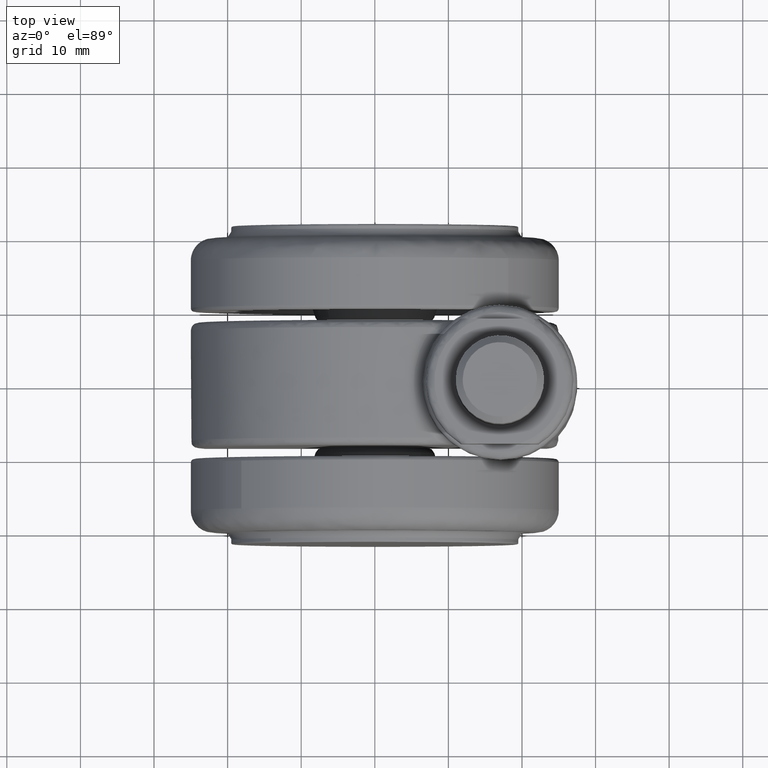
[diagram: clean part render]
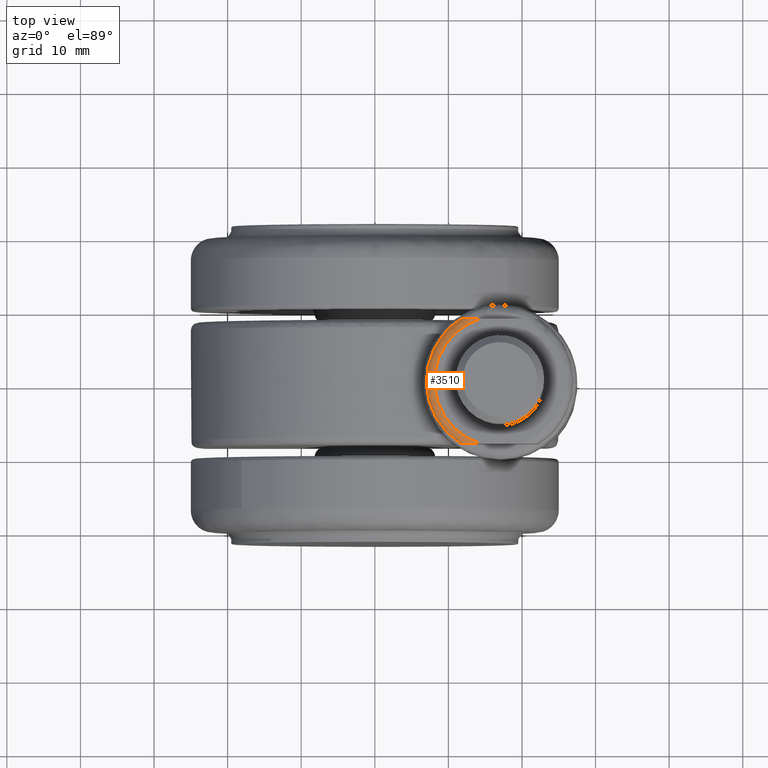
[diagram: same view with one face highlighted and labeled with its STEP entity id]
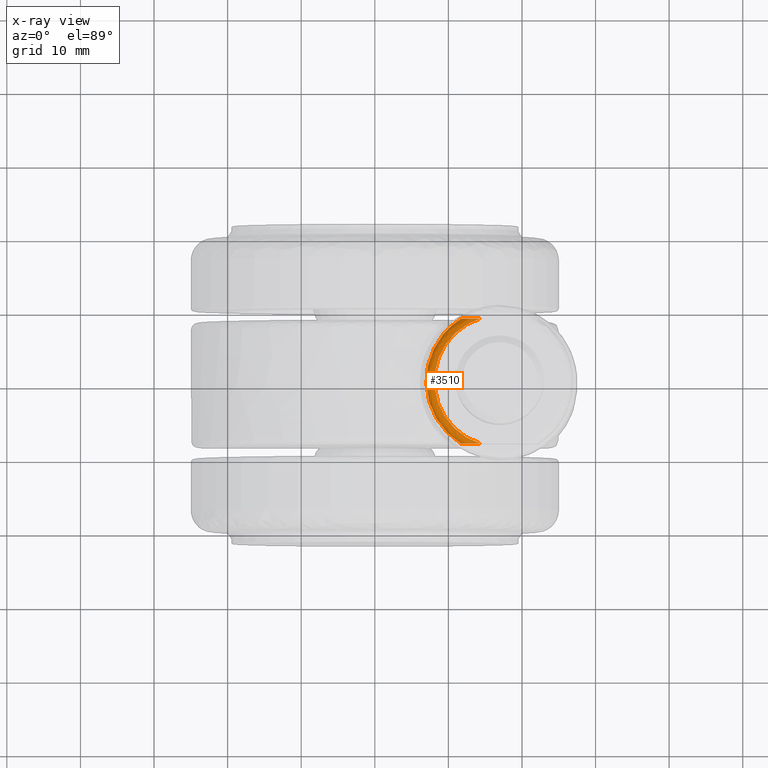
[diagram: x-ray of the same camera — body ghosted, the highlighted face saturated]
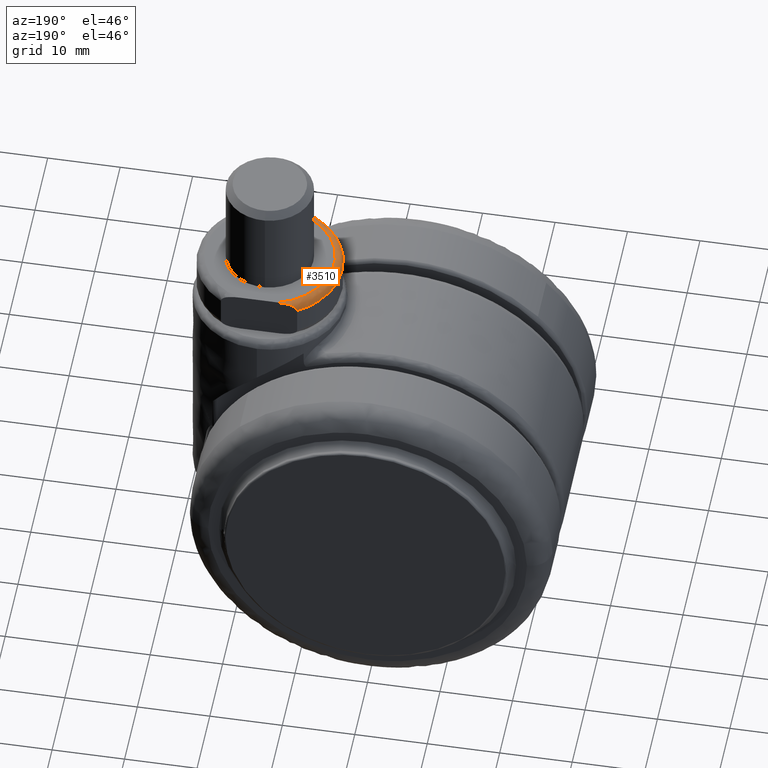
[diagram: same view with one face highlighted and labeled with its STEP entity id]
A machine part, top view. The second image highlights one B-rep face of the part: STEP entity #3510.
The next image is the same camera in x-ray: the body ghosted, the highlighted face saturated — about 0% of this face is hidden behind the body in this view.
A second angle (auxiliary view) of the same face is appended — the face is thin or edge-on in the first view.
In plain terms, the highlighted face is a freeform B-spline surface patch.
Its self-contained STEP definition (entity closure, byte-faithful):
#3370=CARTESIAN_POINT('',(15.412341632525873,-8.679496198988412,33.497337298529885));
#3371=CARTESIAN_POINT('',(8.176490870403953,-7.355910273619162,33.497337298529871));
#3372=CARTESIAN_POINT('',(8.176490870403947,5.402663E-016,33.497337298529871));
#3373=CARTESIAN_POINT('',(8.176490870403949,7.355910121594694,33.497337298529871));
#3374=CARTESIAN_POINT('',(15.412341456074607,8.679496166711846,33.497337298529864));
#3375=CARTESIAN_POINT('',(15.185302896683426,-9.920683777587373,33.585290915613172));
#3376=CARTESIAN_POINT('',(6.914709117151321,-8.407822072597615,33.585290915613172));
#3377=CARTESIAN_POINT('',(6.914709117151318,6.175256E-016,33.585290915613164));
#3378=CARTESIAN_POINT('',(6.914709117151319,8.407821898833308,33.585290915613164));
#3379=CARTESIAN_POINT('',(15.185302694999239,9.920683740695182,33.585290915613164));
#3380=CARTESIAN_POINT('',(15.201128827011729,-9.834165730037558,32.323509159929266));
#3381=CARTESIAN_POINT('',(7.002662699355725,-8.334497656037669,32.323509159929280));
#3382=CARTESIAN_POINT('',(7.002662699355724,6.121401E-016,32.323509159929273));
#3383=CARTESIAN_POINT('',(7.002662699355723,8.334497483788756,32.323509159929280));
#3384=CARTESIAN_POINT('',(15.201128627086424,9.834165693467108,32.323509159929280));
#3392=(BOUNDED_SURFACE()B_SPLINE_SURFACE(2,2,((#3370,#3375,#3380),(#3371,#3376,#3381),(#3372,#3377,#3382),(#3373,#3378,#3383),(#3374,#3379,#3384)),.UNSPECIFIED.,.F.,.F.,.U.)B_SPLINE_SURFACE_WITH_KNOTS((3,2,3),(3,3),(0.0,14.482051852236779,28.964103477361611),(0.0,2.004611388026302),.UNSPECIFIED.)GEOMETRIC_REPRESENTATION_ITEM()RATIONAL_B_SPLINE_SURFACE(((0.897170727117698,0.588745810491155,0.897170715818934),(0.697542029344913,0.457744479401009,0.697542020560227),(0.919258316275454,0.603240237457421,0.919258304698524),(0.697542032821935,0.457744481682718,0.697542024037249),(0.897170720856423,0.588745806382350,0.897170709557658)))REPRESENTATION_ITEM('')SURFACE());
#3393=CARTESIAN_POINT('',(11.732173123573601,-8.500000000000000,32.399999999999999));
#3394=VERTEX_POINT('',#3393);
#3395=CARTESIAN_POINT('',(11.732173123573579,8.500000000000000,32.399999999999999));
#3396=VERTEX_POINT('',#3395);
#3397=CARTESIAN_POINT('',(11.732173123573601,-8.500000000000000,32.399999999999999));
#3398=CARTESIAN_POINT('',(11.124895244314660,-8.123788376666933,32.400000000000112));
#3399=CARTESIAN_POINT('',(10.033569696037249,-7.273105774982302,32.399999999999892));
#3400=CARTESIAN_POINT('',(8.727913319158526,-5.730823311754530,32.399999999999970));
#3401=CARTESIAN_POINT('',(7.861796208804662,-4.174900663118482,32.400000000000027));
#3402=CARTESIAN_POINT('',(7.266886012592701,-2.500179618502741,32.400000000000041));
#3403=CARTESIAN_POINT('',(7.009526426049810,-1.006691570309380,32.399999999999530));
#3404=CARTESIAN_POINT('',(6.983887208813870,0.609552431113763,32.400000000000787));
#3405=CARTESIAN_POINT('',(7.152087567941855,1.926768620008827,32.399999999999643));
#3406=CARTESIAN_POINT('',(7.561840889712052,3.408096636529857,32.399999999999856));
#3407=CARTESIAN_POINT('',(8.222277356562355,4.916522101428477,32.400000000000233));
#3408=CARTESIAN_POINT('',(9.127705755800838,6.230762492459727,32.399999999999778));
#3409=CARTESIAN_POINT('',(10.306436261320620,7.485737393460956,32.400000000000432));
#3410=CARTESIAN_POINT('',(11.124884424576891,8.123790195776488,32.399999999998322));
#3411=CARTESIAN_POINT('',(11.732173123573579,8.500000000000000,32.399999999999999));
#3412=B_SPLINE_CURVE_WITH_KNOTS('',3,(#3397,#3398,#3399,#3400,#3401,#3402,#3403,#3404,#3405,#3406,#3407,#3408,#3409,#3410,#3411),.UNSPECIFIED.,.F.,.U.,(4,1,1,1,1,1,1,1,1,1,1,1,4),(0.000000087439915,2.143075292643736,4.127443803629618,6.032435574422415,7.461165616743372,9.445547686985922,10.556713338314751,12.302972407431261,13.414200041331229,15.160444847860161,17.224178802928421,18.176666453477718,20.319759216059740),.UNSPECIFIED.);
#3413=EDGE_CURVE('',#3394,#3396,#3412,.T.);
#3414=ORIENTED_EDGE('',*,*,#3413,.F.);
#3415=CARTESIAN_POINT('',(14.361818808345300,-8.500000000000000,33.500000000000000));
#3416=VERTEX_POINT('',#3415);
#3417=CARTESIAN_POINT('',(11.732173123573601,-8.500000000000000,32.399999999999999));
#3418=CARTESIAN_POINT('',(11.732172488270880,-8.500000000000000,32.410532627479540));
#3419=CARTESIAN_POINT('',(11.732456352009731,-8.500000000000000,32.421051208579449));
#3420=CARTESIAN_POINT('',(11.735560858004421,-8.500000000000000,32.478146581404879));
#3421=CARTESIAN_POINT('',(11.743663911183329,-8.500000000000002,32.523953647868566));
#3422=CARTESIAN_POINT('',(11.763655289263260,-8.500000000000000,32.591468994513633));
#3423=CARTESIAN_POINT('',(11.771641910389420,-8.500000000000002,32.613746975414863));
#3424=CARTESIAN_POINT('',(11.789718039978011,-8.500000000000000,32.656933432088472));
#3425=CARTESIAN_POINT('',(11.799843767352920,-8.499999999999998,32.677977107869502));
#3426=CARTESIAN_POINT('',(11.833193779549781,-8.500000000000000,32.739606082652237));
#3427=CARTESIAN_POINT('',(11.859628387749890,-8.500000000000000,32.778963178361039));
#3428=CARTESIAN_POINT('',(11.917574268768130,-8.499999999999996,32.852151114619438));
#3429=CARTESIAN_POINT('',(11.949144893356500,-8.500000000000000,32.886212133546827));
#3430=CARTESIAN_POINT('',(12.016454562965061,-8.500000000000000,32.950269628953983));
#3431=CARTESIAN_POINT('',(12.052271649254710,-8.499999999999998,32.980310022340021));
#3432=CARTESIAN_POINT('',(12.127155473101601,-8.500000000000002,33.036717624212130));
#3433=CARTESIAN_POINT('',(12.165745790160770,-8.500000000000000,33.062742935964323));
#3434=CARTESIAN_POINT('',(12.284284924468629,-8.500000000000002,33.135567713053142));
#3435=CARTESIAN_POINT('',(12.366969295326919,-8.500000000000000,33.177177917418220));
#3436=CARTESIAN_POINT('',(12.537613721165309,-8.499999999999998,33.250390515804057));
#3437=CARTESIAN_POINT('',(12.625868207513390,-8.500000000000000,33.281983120571340));
#3438=CARTESIAN_POINT('',(12.891775912653889,-8.499999999999998,33.363515575781712));
#3439=CARTESIAN_POINT('',(13.072249236347810,-8.499999999999998,33.401310932275202));
#3440=CARTESIAN_POINT('',(13.345865888094780,-8.499999999999998,33.442969462979740));
#3441=CARTESIAN_POINT('',(13.437572104229440,-8.500000000000000,33.454265986397388));
#3442=CARTESIAN_POINT('',(13.621793778240781,-8.500000000000004,33.472673293497429));
#3443=CARTESIAN_POINT('',(13.714421266206861,-8.500000000000002,33.479784587442587));
#3444=CARTESIAN_POINT('',(13.991996857292740,-8.500000000000000,33.495971545967407));
#3445=CARTESIAN_POINT('',(14.176939827583990,-8.499999999999998,33.499999999981533));
#3446=CARTESIAN_POINT('',(14.361818808345300,-8.500000000000000,33.500000000000000));
#3447=B_SPLINE_CURVE_WITH_KNOTS('',3,(#3417,#3418,#3419,#3420,#3421,#3422,#3423,#3424,#3425,#3426,#3427,#3428,#3429,#3430,#3431,#3432,#3433,#3434,#3435,#3436,#3437,#3438,#3439,#3440,#3441,#3442,#3443,#3444,#3445,#3446),.UNSPECIFIED.,.F.,.U.,(4,2,2,2,2,2,2,2,2,2,2,2,2,2,4),(0.826376939406635,0.828124999999969,0.835937499999969,0.839843749999970,0.843749999999970,0.851562499999972,0.859374999999973,0.867187499999975,0.874999999999977,0.890624999999980,0.906249999999983,0.937499999999988,0.953124999999991,0.968749999999994,1.0),.UNSPECIFIED.);
#3448=EDGE_CURVE('',#3394,#3416,#3447,.T.);
#3449=ORIENTED_EDGE('',*,*,#3448,.T.);
#3450=CARTESIAN_POINT('',(14.361818808345300,8.500000000000000,33.500000000000000));
#3451=VERTEX_POINT('',#3450);
#3452=CARTESIAN_POINT('',(14.361818808345300,-8.500000000000000,33.500000000000000));
#3453=CARTESIAN_POINT('',(13.912070420103060,-8.360440238104062,33.500000000000000));
#3454=CARTESIAN_POINT('',(13.062241921644510,-8.020641941422888,33.500000000000000));
#3455=CARTESIAN_POINT('',(11.766649449818001,-7.254496027825064,33.500000000000043));
#3456=CARTESIAN_POINT('',(10.710377679225051,-6.350819892010010,33.499999999999993));
#3457=CARTESIAN_POINT('',(9.851279428143544,-5.339742361018897,33.500000000000021));
#3458=CARTESIAN_POINT('',(9.155850520469459,-4.279221749981277,33.500000000000000));
#3459=CARTESIAN_POINT('',(8.642342824953463,-3.149385253431619,33.500000000000057));
#3460=CARTESIAN_POINT('',(8.280554821272373,-1.903947815273050,33.499999999999922));
#3461=CARTESIAN_POINT('',(8.086152537065303,-0.649892384431008,33.500000000000192));
#3462=CARTESIAN_POINT('',(8.093169271351023,0.767822963725112,33.499999999999979));
#3463=CARTESIAN_POINT('',(8.306299891706448,2.019336722814749,33.499999999999972));
#3464=CARTESIAN_POINT('',(8.660597709770542,3.174409765815075,33.500000000002473));
#3465=CARTESIAN_POINT('',(9.083332435125485,4.116892644383120,33.499999999990379));
#3466=CARTESIAN_POINT('',(9.771464331331133,5.250434123118415,33.500000000010481));
#3467=CARTESIAN_POINT('',(10.566435928835970,6.204938930750541,33.499999999994898));
#3468=CARTESIAN_POINT('',(11.654873098380440,7.154953742094806,33.500000000001023));
#3469=CARTESIAN_POINT('',(12.845574634330269,7.924500345074419,33.499999999998572));
#3470=CARTESIAN_POINT('',(13.827744180034671,8.334295803123473,33.500000000001521));
#3471=CARTESIAN_POINT('',(14.361818808345300,8.500000000000000,33.500000000000000));
#3472=B_SPLINE_CURVE_WITH_KNOTS('',3,(#3452,#3453,#3454,#3455,#3456,#3457,#3458,#3459,#3460,#3461,#3462,#3463,#3464,#3465,#3466,#3467,#3468,#3469,#3470,#3471),.UNSPECIFIED.,.F.,.U.,(4,1,1,1,1,1,1,1,1,1,1,1,1,1,1,1,1,4),(0.000000085753111,1.412712589685750,2.737124694750023,4.503020759456764,5.562557974358136,6.710390582778480,8.299715201079694,9.270963421224677,10.595357383544091,12.096321378739010,13.509068301531460,14.392007672203301,15.716429986481179,16.599378562237320,18.365271953728460,19.424825814736380,20.925843662825390,22.603409302361790),.UNSPECIFIED.);
#3473=EDGE_CURVE('',#3416,#3451,#3472,.T.);
#3474=ORIENTED_EDGE('',*,*,#3473,.T.);
#3475=CARTESIAN_POINT('',(14.361818808345300,8.500000000000000,33.500000000000000));
#3476=CARTESIAN_POINT('',(14.180705627136840,8.500000000000002,33.499999999985732));
#3477=CARTESIAN_POINT('',(13.999987454202589,8.500000000000000,33.496117348309532));
#3478=CARTESIAN_POINT('',(13.639834943331440,8.500000000000002,33.475732855913400));
#3479=CARTESIAN_POINT('',(13.460394029185700,8.500000000000000,33.459295654670271));
#3480=CARTESIAN_POINT('',(13.103486130387759,8.499999999999998,33.407018922843051));
#3481=CARTESIAN_POINT('',(12.925994609388191,8.499999999999998,33.371420567181467));
#3482=CARTESIAN_POINT('',(12.706162219471331,8.500000000000000,33.306949389908773));
#3483=CARTESIAN_POINT('',(12.662300186823300,8.499999999999998,33.293028530757063));
#3484=CARTESIAN_POINT('',(12.574822115581251,8.500000000000002,33.262768865071472));
#3485=CARTESIAN_POINT('',(12.531332009502121,8.499999999999998,33.246465471662113));
#3486=CARTESIAN_POINT('',(12.402925031862379,8.499999999999998,33.193956335203602));
#3487=CARTESIAN_POINT('',(12.319601713528121,8.500000000000000,33.154088392751078));
#3488=CARTESIAN_POINT('',(12.199376864950340,8.500000000000000,33.084141955876412));
#3489=CARTESIAN_POINT('',(12.160148380141001,8.499999999999998,33.059117707352982));
#3490=CARTESIAN_POINT('',(12.084946254120750,8.499999999999998,33.005860821964049));
#3491=CARTESIAN_POINT('',(12.048813441161821,8.499999999999998,32.977545807658103));
#3492=CARTESIAN_POINT('',(11.980056287637771,8.499999999999998,32.916885614065507));
#3493=CARTESIAN_POINT('',(11.947424541836300,8.499999999999998,32.884548941137467));
#3494=CARTESIAN_POINT('',(11.886564120158500,8.499999999999998,32.814817810517013));
#3495=CARTESIAN_POINT('',(11.858234525279840,8.499999999999998,32.777160591513919));
#3496=CARTESIAN_POINT('',(11.809296620395809,8.499999999999998,32.698384118300957));
#3497=CARTESIAN_POINT('',(11.788401054494580,8.499999999999998,32.657015034713417));
#3498=CARTESIAN_POINT('',(11.755366870145391,8.499999999999998,32.569422600380733));
#3499=CARTESIAN_POINT('',(11.743750110243390,8.499999999999996,32.524380629105259));
#3500=CARTESIAN_POINT('',(11.734413445527821,8.500000000000000,32.455865874882001));
#3501=CARTESIAN_POINT('',(11.732633876299481,8.500000000000000,32.432816167630548));
#3502=CARTESIAN_POINT('',(11.732198205700881,8.500000000000000,32.406368663249133));
#3503=CARTESIAN_POINT('',(11.732172444164259,8.500000000000000,32.403186374478103));
#3504=CARTESIAN_POINT('',(11.732173123573579,8.500000000000000,32.399999999999999));
#3505=B_SPLINE_CURVE_WITH_KNOTS('',3,(#3475,#3476,#3477,#3478,#3479,#3480,#3481,#3482,#3483,#3484,#3485,#3486,#3487,#3488,#3489,#3490,#3491,#3492,#3493,#3494,#3495,#3496,#3497,#3498,#3499,#3500,#3501,#3502,#3503,#3504),.UNSPECIFIED.,.F.,.U.,(4,2,2,2,2,2,2,2,2,2,2,2,2,2,4),(0.0,0.031250000000006,0.062500000000012,0.093750000000018,0.101562500000019,0.109375000000021,0.125000000000023,0.132812500000024,0.140625000000025,0.148437500000026,0.156250000000027,0.164062500000028,0.171875000000030,0.175781250000030,0.176314407642958),.UNSPECIFIED.);
#3506=EDGE_CURVE('',#3451,#3396,#3505,.T.);
#3507=ORIENTED_EDGE('',*,*,#3506,.T.);
#3508=EDGE_LOOP('',(#3414,#3449,#3474,#3507));
#3509=FACE_OUTER_BOUND('',#3508,.T.);
#3510=ADVANCED_FACE('',(#3509),#3392,.T.);